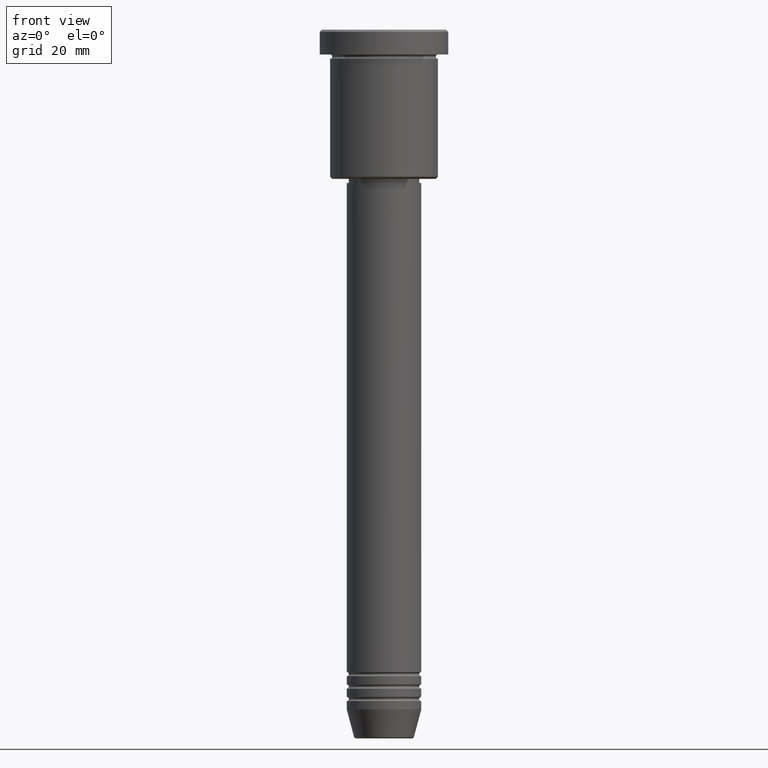
[diagram: clean part render]
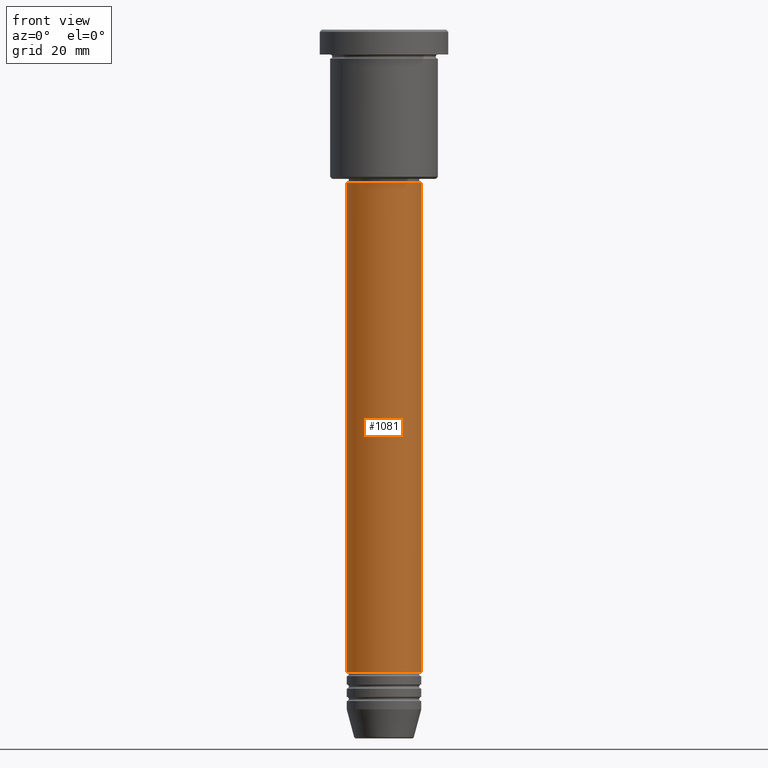
[diagram: same view with one face highlighted and labeled with its STEP entity id]
A machine part, front view. The second image highlights one B-rep face of the part: STEP entity #1081.
In plain terms, the highlighted cylindrical surface (partial cylindrical patch) has radius 9 mm, axis along (-0, -0, 1).
Its self-contained STEP definition (entity closure, byte-faithful):
#25 = EDGE_CURVE ( 'NONE', #766, #242, #1153, .T. ) ;
#154 = EDGE_CURVE ( 'NONE', #583, #242, #667, .T. ) ;
#176 = CARTESIAN_POINT ( 'NONE',  ( 0.000000000000000000, 0.000000000000000000, -37.00000000000000000 ) ) ;
#190 = ORIENTED_EDGE ( 'NONE', *, *, #1035, .F. ) ;
#225 = CIRCLE ( 'NONE', #535, 9.000000000000000000 ) ;
#242 = VERTEX_POINT ( 'NONE', #386 ) ;
#254 = VERTEX_POINT ( 'NONE', #1034 ) ;
#261 = AXIS2_PLACEMENT_3D ( 'NONE', #715, #1161, #1152 ) ;
#274 = CARTESIAN_POINT ( 'NONE',  ( 9.000000000000000000, 0.000000000000000000, -154.9999999999999716 ) ) ;
#353 = FACE_OUTER_BOUND ( 'NONE', #799, .T. ) ;
#362 = DIRECTION ( 'NONE',  ( 1.000000000000000000, 0.000000000000000000, 0.000000000000000000 ) ) ;
#383 = VECTOR ( 'NONE', #1089, 1000.000000000000000 ) ;
#386 = CARTESIAN_POINT ( 'NONE',  ( 9.000000000000000000, 0.000000000000000000, -37.00000000000000000 ) ) ;
#414 = LINE ( 'NONE', #1073, #621 ) ;
#448 = DIRECTION ( 'NONE',  ( -0.000000000000000000, -0.000000000000000000, 1.000000000000000000 ) ) ;
#464 = DIRECTION ( 'NONE',  ( -0.000000000000000000, -0.000000000000000000, 1.000000000000000000 ) ) ;
#521 = DIRECTION ( 'NONE',  ( -0.000000000000000000, -0.000000000000000000, 1.000000000000000000 ) ) ;
#535 = AXIS2_PLACEMENT_3D ( 'NONE', #993, #521, #362 ) ;
#540 = ORIENTED_EDGE ( 'NONE', *, *, #25, .F. ) ;
#583 = VERTEX_POINT ( 'NONE', #274 ) ;
#621 = VECTOR ( 'NONE', #448, 1000.000000000000000 ) ;
#667 = LINE ( 'NONE', #1160, #383 ) ;
#715 = CARTESIAN_POINT ( 'NONE',  ( 0.000000000000000000, 0.000000000000000000, 0.000000000000000000 ) ) ;
#766 = VERTEX_POINT ( 'NONE', #916 ) ;
#799 = EDGE_LOOP ( 'NONE', ( #190, #1059, #1182, #540 ) ) ;
#805 = CYLINDRICAL_SURFACE ( 'NONE', #261, 9.000000000000000000 ) ;
#823 = DIRECTION ( 'NONE',  ( 1.000000000000000000, 0.000000000000000000, 0.000000000000000000 ) ) ;
#916 = CARTESIAN_POINT ( 'NONE',  ( -9.000000000000000000, 1.102182119232617714E-15, -37.00000000000000000 ) ) ;
#993 = CARTESIAN_POINT ( 'NONE',  ( 0.000000000000000000, 0.000000000000000000, -154.9999999999999716 ) ) ;
#1034 = CARTESIAN_POINT ( 'NONE',  ( -9.000000000000000000, 1.102182119232617714E-15, -154.9999999999999716 ) ) ;
#1035 = EDGE_CURVE ( 'NONE', #254, #766, #414, .T. ) ;
#1059 = ORIENTED_EDGE ( 'NONE', *, *, #1125, .T. ) ;
#1073 = CARTESIAN_POINT ( 'NONE',  ( -9.000000000000000000, 1.102182119232617714E-15, 0.000000000000000000 ) ) ;
#1081 = ADVANCED_FACE ( 'NONE', ( #353 ), #805, .T. ) ;
#1089 = DIRECTION ( 'NONE',  ( -0.000000000000000000, -0.000000000000000000, 1.000000000000000000 ) ) ;
#1125 = EDGE_CURVE ( 'NONE', #254, #583, #225, .T. ) ;
#1152 = DIRECTION ( 'NONE',  ( 1.000000000000000000, 0.000000000000000000, 0.000000000000000000 ) ) ;
#1153 = CIRCLE ( 'NONE', #1177, 9.000000000000000000 ) ;
#1160 = CARTESIAN_POINT ( 'NONE',  ( 9.000000000000000000, 0.000000000000000000, 0.000000000000000000 ) ) ;
#1161 = DIRECTION ( 'NONE',  ( -0.000000000000000000, -0.000000000000000000, 1.000000000000000000 ) ) ;
#1177 = AXIS2_PLACEMENT_3D ( 'NONE', #176, #464, #823 ) ;
#1182 = ORIENTED_EDGE ( 'NONE', *, *, #154, .T. ) ;